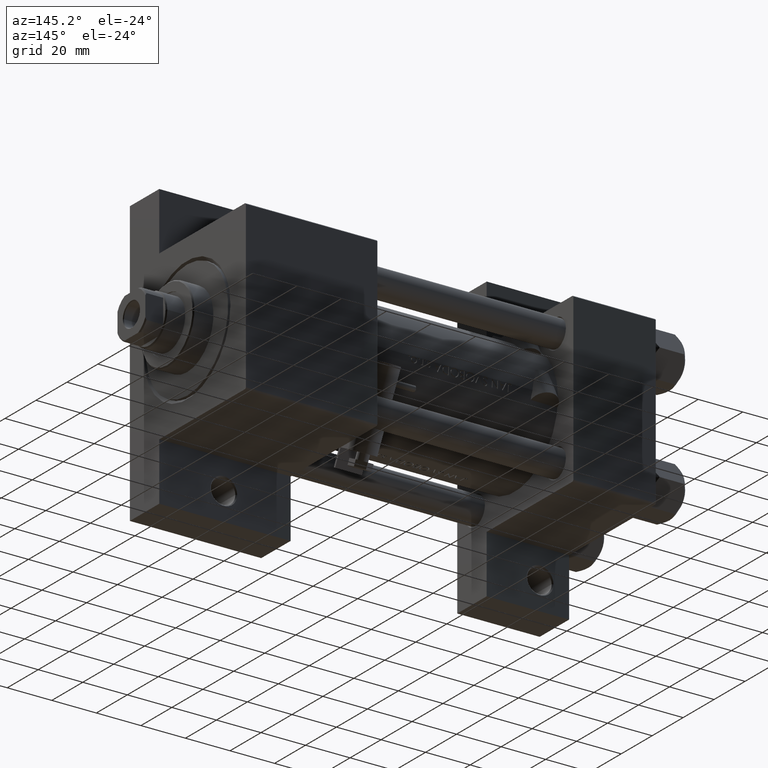
[diagram: clean part render]
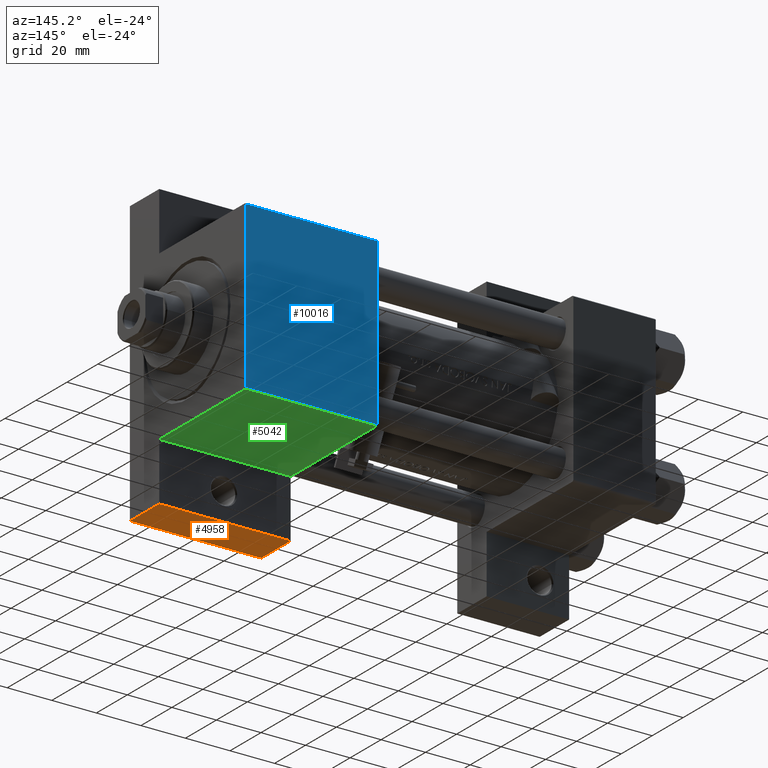
[diagram: same view with three faces highlighted in distinct colors, each labeled with its STEP entity id]
A machine part, auxiliary view with three faces highlighted in distinct colors.
Their STEP definitions:

[orange] entity #4958 — the highlighted planar face has unit normal (0, 0, -1).
#562 = DIRECTION ( 'NONE',  ( 0.000000000000000000, 0.000000000000000000, -1.000000000000000000 ) ) ;
#2407 = EDGE_CURVE ( 'NONE', #8251, #17983, #9997, .T. ) ;
#2851 = EDGE_LOOP ( 'NONE', ( #28891, #42395, #30411, #9985 ) ) ;
#4236 = LINE ( 'NONE', #30541, #36050 ) ;
#4246 = CARTESIAN_POINT ( 'NONE',  ( 184.0000000000000284, 63.50000000000000000, -18.50000000000000000 ) ) ;
#4958 = ADVANCED_FACE ( 'NONE', ( #17439 ), #39541, .T. ) ;
#5674 = CARTESIAN_POINT ( 'NONE',  ( 125.0000000000000000, 63.50000000000000000, -18.50000000000000000 ) ) ;
#6915 = EDGE_CURVE ( 'NONE', #14231, #8251, #9373, .T. ) ;
#8251 = VERTEX_POINT ( 'NONE', #48644 ) ;
#9220 = VECTOR ( 'NONE', #39346, 1000.000000000000000 ) ;
#9373 = LINE ( 'NONE', #5674, #9220 ) ;
#9749 = DIRECTION ( 'NONE',  ( 1.000000000000000000, 0.000000000000000000, 0.000000000000000000 ) ) ;
#9824 = DIRECTION ( 'NONE',  ( -0.000000000000000000, 1.000000000000000000, 0.000000000000000000 ) ) ;
#9985 = ORIENTED_EDGE ( 'NONE', *, *, #13056, .T. ) ;
#9997 = LINE ( 'NONE', #13932, #36546 ) ;
#12077 = CARTESIAN_POINT ( 'NONE',  ( 184.0000000000000284, 63.50000000000000000, -37.50000000000000000 ) ) ;
#13056 = EDGE_CURVE ( 'NONE', #20939, #17983, #4236, .T. ) ;
#13932 = CARTESIAN_POINT ( 'NONE',  ( 125.0000000000000000, 63.50000000000000000, -37.50000000000000000 ) ) ;
#14231 = VERTEX_POINT ( 'NONE', #20045 ) ;
#16854 = LINE ( 'NONE', #31849, #32408 ) ;
#16948 = CARTESIAN_POINT ( 'NONE',  ( 125.0000000000000000, 63.50000000000000000, -18.50000000000000000 ) ) ;
#17439 = FACE_OUTER_BOUND ( 'NONE', #2851, .T. ) ;
#17983 = VERTEX_POINT ( 'NONE', #12077 ) ;
#18289 = EDGE_CURVE ( 'NONE', #14231, #20939, #16854, .T. ) ;
#20045 = CARTESIAN_POINT ( 'NONE',  ( 125.0000000000000000, 63.50000000000000000, -18.50000000000000000 ) ) ;
#20939 = VERTEX_POINT ( 'NONE', #4246 ) ;
#28644 = DIRECTION ( 'NONE',  ( 1.000000000000000000, 0.000000000000000000, 0.000000000000000000 ) ) ;
#28891 = ORIENTED_EDGE ( 'NONE', *, *, #2407, .F. ) ;
#30411 = ORIENTED_EDGE ( 'NONE', *, *, #18289, .T. ) ;
#30541 = CARTESIAN_POINT ( 'NONE',  ( 184.0000000000000284, 63.50000000000000000, -18.50000000000000000 ) ) ;
#31849 = CARTESIAN_POINT ( 'NONE',  ( 125.0000000000000000, 63.50000000000000000, -18.50000000000000000 ) ) ;
#31875 = AXIS2_PLACEMENT_3D ( 'NONE', #16948, #9824, #47189 ) ;
#32408 = VECTOR ( 'NONE', #28644, 1000.000000000000000 ) ;
#36050 = VECTOR ( 'NONE', #562, 1000.000000000000000 ) ;
#36546 = VECTOR ( 'NONE', #9749, 1000.000000000000000 ) ;
#39346 = DIRECTION ( 'NONE',  ( 0.000000000000000000, 0.000000000000000000, -1.000000000000000000 ) ) ;
#39541 = PLANE ( 'NONE',  #31875 ) ;
#42395 = ORIENTED_EDGE ( 'NONE', *, *, #6915, .F. ) ;
#47189 = DIRECTION ( 'NONE',  ( 0.000000000000000000, -0.000000000000000000, 1.000000000000000000 ) ) ;
#48644 = CARTESIAN_POINT ( 'NONE',  ( 125.0000000000000000, 63.50000000000000000, -37.50000000000000000 ) ) ;

[blue] entity #10016 — the highlighted planar face has unit normal (0, -1, -0).
#2734 = ORIENTED_EDGE ( 'NONE', *, *, #45747, .F. ) ;
#6576 = VECTOR ( 'NONE', #22733, 1000.000000000000000 ) ;
#6676 = LINE ( 'NONE', #10148, #38437 ) ;
#7729 = CARTESIAN_POINT ( 'NONE',  ( 184.0000000000000000, 37.50000000000000000, 37.49999999999999289 ) ) ;
#8750 = ORIENTED_EDGE ( 'NONE', *, *, #32865, .T. ) ;
#9249 = VERTEX_POINT ( 'NONE', #17496 ) ;
#10016 = ADVANCED_FACE ( 'NONE', ( #17018 ), #28560, .F. ) ;
#10148 = CARTESIAN_POINT ( 'NONE',  ( 125.0000000000000000, 37.00000000000000000, 37.49999999999999289 ) ) ;
#11428 = VERTEX_POINT ( 'NONE', #17651 ) ;
#11607 = VECTOR ( 'NONE', #23582, 1000.000000000000000 ) ;
#11826 = ORIENTED_EDGE ( 'NONE', *, *, #40791, .T. ) ;
#14052 = LINE ( 'NONE', #44927, #40906 ) ;
#15989 = ORIENTED_EDGE ( 'NONE', *, *, #37417, .T. ) ;
#17018 = FACE_OUTER_BOUND ( 'NONE', #26163, .T. ) ;
#17496 = CARTESIAN_POINT ( 'NONE',  ( 184.0000000000000000, 37.00000000000000000, 37.49999999999999289 ) ) ;
#17503 = DIRECTION ( 'NONE',  ( 0.000000000000000000, 1.000000000000000000, 1.850371707708594316E-16 ) ) ;
#17651 = CARTESIAN_POINT ( 'NONE',  ( 184.0000000000000000, -36.99999999999997158, 37.49999999999997868 ) ) ;
#20236 = CARTESIAN_POINT ( 'NONE',  ( 184.0000000000000000, 37.50000000000000000, 37.49999999999999289 ) ) ;
#22733 = DIRECTION ( 'NONE',  ( 0.000000000000000000, -1.000000000000000000, -1.850371707708594316E-16 ) ) ;
#23582 = DIRECTION ( 'NONE',  ( 0.000000000000000000, -1.000000000000000000, -1.850371707708594316E-16 ) ) ;
#25033 = VERTEX_POINT ( 'NONE', #37164 ) ;
#26163 = EDGE_LOOP ( 'NONE', ( #2734, #15989, #8750, #11826 ) ) ;
#28560 = PLANE ( 'NONE',  #35158 ) ;
#31441 = CARTESIAN_POINT ( 'NONE',  ( 125.0000000000000000, 37.50000000000000000, 37.49999999999999289 ) ) ;
#31759 = DIRECTION ( 'NONE',  ( 0.000000000000000000, 1.850371707708594316E-16, -1.000000000000000000 ) ) ;
#32865 = EDGE_CURVE ( 'NONE', #43203, #25033, #45952, .T. ) ;
#35158 = AXIS2_PLACEMENT_3D ( 'NONE', #20236, #31759, #17503 ) ;
#35407 = CARTESIAN_POINT ( 'NONE',  ( 125.0000000000000000, 37.00000000000000000, 37.49999999999999289 ) ) ;
#36389 = DIRECTION ( 'NONE',  ( 1.000000000000000000, 0.000000000000000000, 0.000000000000000000 ) ) ;
#37164 = CARTESIAN_POINT ( 'NONE',  ( 125.0000000000000000, -36.99999999999997158, 37.49999999999997868 ) ) ;
#37417 = EDGE_CURVE ( 'NONE', #9249, #43203, #6676, .T. ) ;
#38437 = VECTOR ( 'NONE', #47010, 1000.000000000000000 ) ;
#40791 = EDGE_CURVE ( 'NONE', #25033, #11428, #14052, .T. ) ;
#40906 = VECTOR ( 'NONE', #36389, 1000.000000000000000 ) ;
#41407 = LINE ( 'NONE', #7729, #6576 ) ;
#43203 = VERTEX_POINT ( 'NONE', #35407 ) ;
#44927 = CARTESIAN_POINT ( 'NONE',  ( 184.0000000000000000, -36.99999999999997158, 37.49999999999997868 ) ) ;
#45747 = EDGE_CURVE ( 'NONE', #9249, #11428, #41407, .T. ) ;
#45952 = LINE ( 'NONE', #31441, #11607 ) ;
#47010 = DIRECTION ( 'NONE',  ( -1.000000000000000000, 0.000000000000000000, 0.000000000000000000 ) ) ;

[green] entity #5042 — the highlighted planar face has unit normal (0, 0, -1).
#2046 = AXIS2_PLACEMENT_3D ( 'NONE', #36107, #2439, #32421 ) ;
#2439 = DIRECTION ( 'NONE',  ( -0.000000000000000000, 1.000000000000000000, 0.000000000000000000 ) ) ;
#5042 = ADVANCED_FACE ( 'NONE', ( #6131 ), #25048, .T. ) ;
#6131 = FACE_OUTER_BOUND ( 'NONE', #13500, .T. ) ;
#11546 = DIRECTION ( 'NONE',  ( 1.000000000000000000, 0.000000000000000000, 0.000000000000000000 ) ) ;
#12021 = LINE ( 'NONE', #15960, #22301 ) ;
#12956 = ORIENTED_EDGE ( 'NONE', *, *, #46621, .T. ) ;
#12982 = CARTESIAN_POINT ( 'NONE',  ( 125.0000000000000000, 37.50000000000000000, 36.99999999999999289 ) ) ;
#13500 = EDGE_LOOP ( 'NONE', ( #46854, #12956, #23617, #24551 ) ) ;
#14139 = DIRECTION ( 'NONE',  ( 0.000000000000000000, 0.000000000000000000, -1.000000000000000000 ) ) ;
#14744 = EDGE_CURVE ( 'NONE', #33503, #26938, #31479, .T. ) ;
#15960 = CARTESIAN_POINT ( 'NONE',  ( 184.0000000000000000, 37.50000000000000000, 36.99999999999999289 ) ) ;
#22301 = VECTOR ( 'NONE', #11546, 1000.000000000000000 ) ;
#22483 = VECTOR ( 'NONE', #14139, 1000.000000000000000 ) ;
#23617 = ORIENTED_EDGE ( 'NONE', *, *, #14744, .T. ) ;
#24551 = ORIENTED_EDGE ( 'NONE', *, *, #42557, .T. ) ;
#25048 = PLANE ( 'NONE',  #2046 ) ;
#25193 = LINE ( 'NONE', #44120, #36893 ) ;
#26938 = VERTEX_POINT ( 'NONE', #31532 ) ;
#29958 = EDGE_CURVE ( 'NONE', #35728, #33880, #47313, .T. ) ;
#31479 = LINE ( 'NONE', #43019, #46999 ) ;
#31532 = CARTESIAN_POINT ( 'NONE',  ( 184.0000000000000000, 37.49999999999999289, -18.50000000000000000 ) ) ;
#31710 = DIRECTION ( 'NONE',  ( 0.000000000000000000, 0.000000000000000000, -1.000000000000000000 ) ) ;
#32421 = DIRECTION ( 'NONE',  ( 0.000000000000000000, -0.000000000000000000, 1.000000000000000000 ) ) ;
#33503 = VERTEX_POINT ( 'NONE', #44998 ) ;
#33880 = VERTEX_POINT ( 'NONE', #46156 ) ;
#35728 = VERTEX_POINT ( 'NONE', #12982 ) ;
#36107 = CARTESIAN_POINT ( 'NONE',  ( 184.0000000000000000, 37.50000000000000000, 37.49999999999999289 ) ) ;
#36893 = VECTOR ( 'NONE', #40193, 1000.000000000000000 ) ;
#40193 = DIRECTION ( 'NONE',  ( -1.000000000000000000, 1.176083712526648949E-16, -0.000000000000000000 ) ) ;
#42557 = EDGE_CURVE ( 'NONE', #26938, #33880, #25193, .T. ) ;
#43019 = CARTESIAN_POINT ( 'NONE',  ( 184.0000000000000000, 37.50000000000000000, 37.49999999999999289 ) ) ;
#44120 = CARTESIAN_POINT ( 'NONE',  ( 125.0000000000000000, 37.50000000000000000, -18.50000000000000000 ) ) ;
#44337 = CARTESIAN_POINT ( 'NONE',  ( 125.0000000000000000, 37.50000000000000000, 37.49999999999999289 ) ) ;
#44998 = CARTESIAN_POINT ( 'NONE',  ( 184.0000000000000000, 37.50000000000000000, 36.99999999999999289 ) ) ;
#46156 = CARTESIAN_POINT ( 'NONE',  ( 125.0000000000000000, 37.50000000000000000, -18.50000000000000355 ) ) ;
#46621 = EDGE_CURVE ( 'NONE', #35728, #33503, #12021, .T. ) ;
#46854 = ORIENTED_EDGE ( 'NONE', *, *, #29958, .F. ) ;
#46999 = VECTOR ( 'NONE', #31710, 1000.000000000000000 ) ;
#47313 = LINE ( 'NONE', #44337, #22483 ) ;